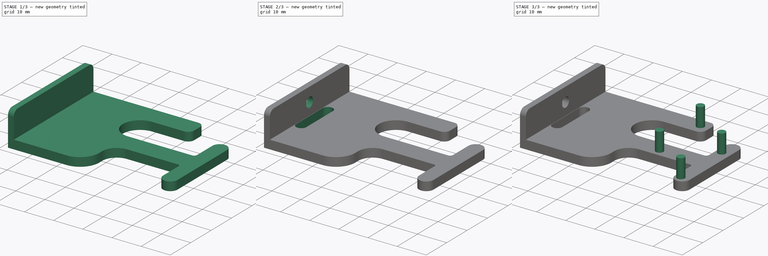
[diagram: build sequence overview — one tinted view per stage of 3, left to right]
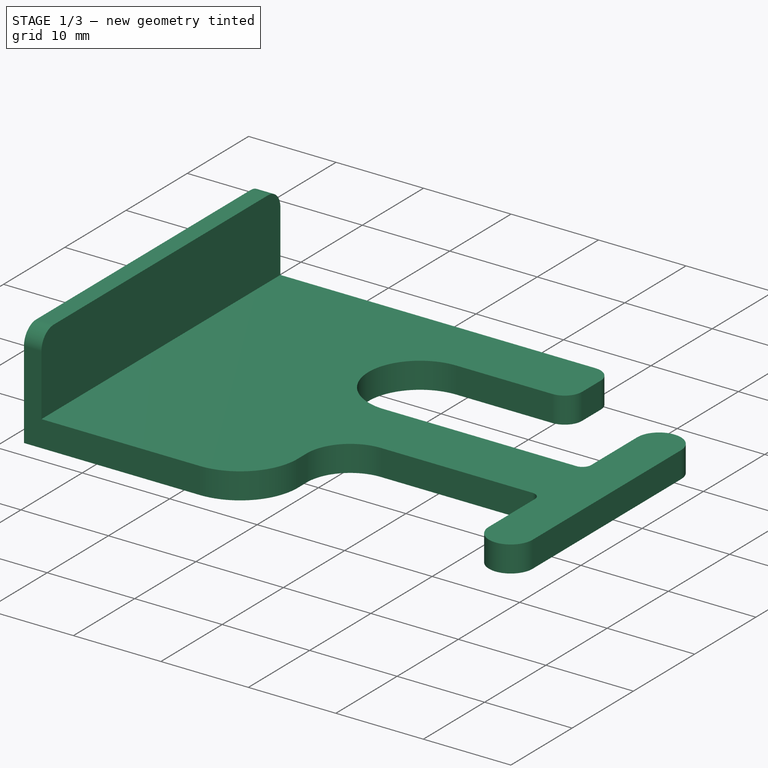
[diagram: stage 1 of 3 — iso view after this stage's code; geometry added in this stage tinted green]
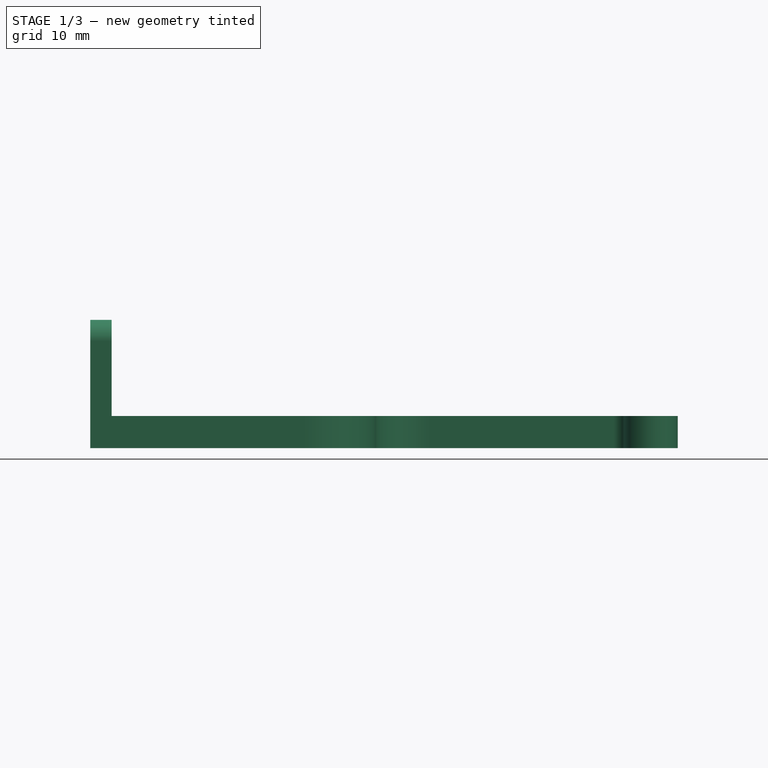
[diagram: stage 1 of 3 — front view after this stage's code; geometry added in this stage tinted green]
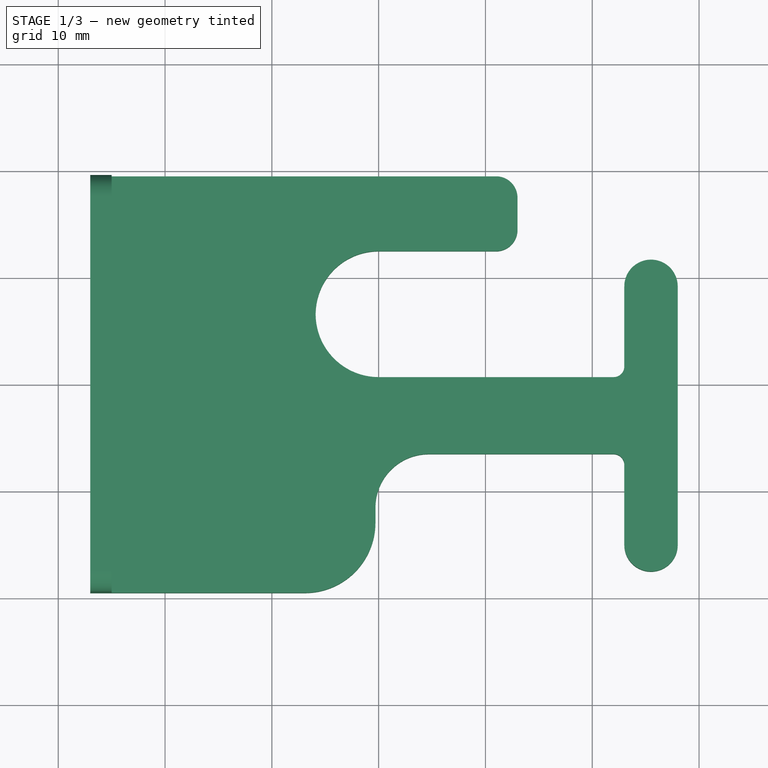
[diagram: stage 1 of 3 — top view after this stage's code; geometry added in this stage tinted green]
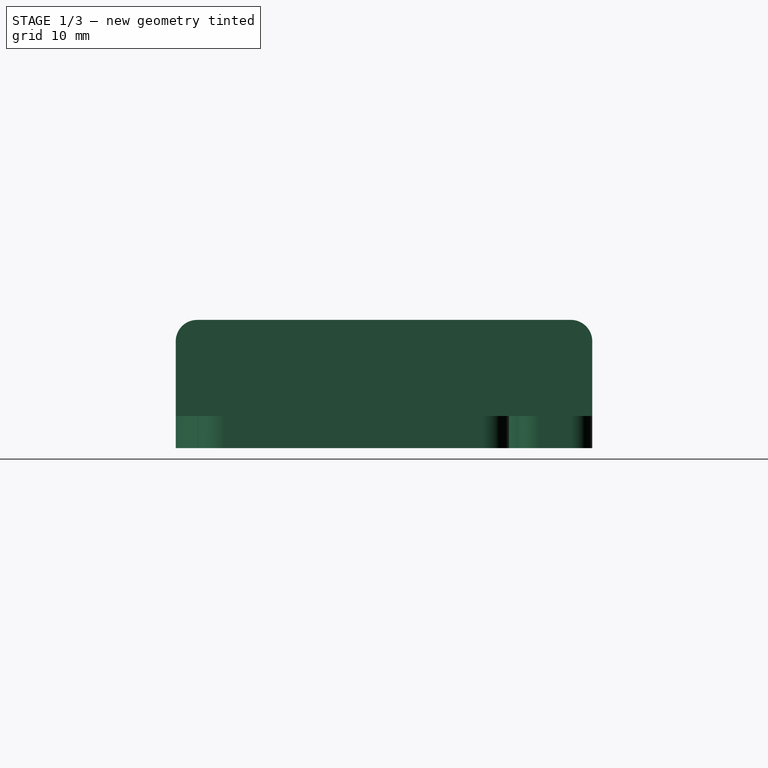
[diagram: stage 1 of 3 — right view after this stage's code; geometry added in this stage tinted green]
FCSTD DOCUMENT  (FreeCAD 0.15R4671 (Git))
Label: renacuajo-sniffer
License: CC-BY 3.0
LicenseURL: http://creativecommons.org/licenses/by/3.0/
objects: Sketcher::SketchObject×5, PartDesign::Pad×3, PartDesign::Pocket×2, Part::Feature×1, Part::MultiFuse×1
note: 17 computed .brp shape members not serialized (recipe doc carries the construction recipe); baked Part::Feature solids carry a one-line shape summary decoded from their .brp

FEATURE [Sketcher::SketchObject] Sketch  label="sniffer-base-sketch"
  sketch-geometry (20):
    g0: LineSegment StartX=-27 StartY=-19.5085 StartZ=0 EndX=-27 EndY=19.4915 EndZ=0
    g1: LineSegment StartX=-27 StartY=19.4915 StartZ=0 EndX=11 EndY=19.4915 EndZ=0
    g2: LineSegment StartX=13 StartY=17.4915 StartZ=0 EndX=13 EndY=14.4915 EndZ=0
    g3: LineSegment StartX=11 StartY=12.4915 StartZ=0 EndX=0 EndY=12.4915 EndZ=0
    g4: LineSegment StartX=-27 StartY=-19.5085 StartZ=0 EndX=-6.9 EndY=-19.5085 EndZ=0
    g5: LineSegment StartX=-0.3 StartY=-12.9085 StartZ=0 EndX=-0.3 EndY=-11.5085 EndZ=0
    g6: LineSegment StartX=4.7 StartY=-6.50851 StartZ=0 EndX=22 EndY=-6.50851 EndZ=0
    g7: LineSegment StartX=23 StartY=-7.50851 StartZ=0 EndX=23 EndY=-15.0085 EndZ=0
    g8: LineSegment StartX=28 StartY=-15.0085 StartZ=0 EndX=28 EndY=9.1915 EndZ=0
    g9: LineSegment StartX=23 StartY=9.19149 StartZ=0 EndX=23 EndY=1.69149 EndZ=0
    g10: LineSegment StartX=22 StartY=0.691495 StartZ=0 EndX=-1.14725e-06 EndY=0.691495 EndZ=0
    g11: ArcOfCircle CenterX=-1.80439e-07 CenterY=6.5915 CenterZ=0 NormalX=0 NormalY=0 NormalZ=1 Radius=5.9 StartAngle=1.5708 EndAngle=4.71239
    g12: ArcOfCircle CenterX=11 CenterY=17.4915 CenterZ=0 NormalX=0 NormalY=0 NormalZ=1 Radius=2 StartAngle=0 EndAngle=1.5708
    g13: ArcOfCircle CenterX=11 CenterY=14.4915 CenterZ=0 NormalX=0 NormalY=0 NormalZ=1 Radius=2 StartAngle=4.71239 EndAngle=6.28319
    g14: ArcOfCircle CenterX=-6.9 CenterY=-12.9085 CenterZ=0 NormalX=0 NormalY=0 NormalZ=1 Radius=6.6 StartAngle=4.71239 EndAngle=6.28319
    g15: ArcOfCircle CenterX=4.7 CenterY=-11.5085 CenterZ=0 NormalX=0 NormalY=0 NormalZ=1 Radius=5 StartAngle=1.5708 EndAngle=3.14159
    g16: ArcOfCircle CenterX=22 CenterY=-7.50851 CenterZ=0 NormalX=0 NormalY=0 NormalZ=1 Radius=1 StartAngle=0 EndAngle=1.5708
    g17: ArcOfCircle CenterX=25.5 CenterY=-15.0085 CenterZ=0 NormalX=0 NormalY=0 NormalZ=1 Radius=2.5 StartAngle=3.14159 EndAngle=6.28319
    g18: ArcOfCircle CenterX=22 CenterY=1.69149 CenterZ=0 NormalX=0 NormalY=0 NormalZ=1 Radius=1 StartAngle=4.71239 EndAngle=6.28319
    g19: ArcOfCircle CenterX=25.5 CenterY=9.1915 CenterZ=0 NormalX=0 NormalY=0 NormalZ=1 Radius=2.5 StartAngle=6.28319 EndAngle=9.42478
  constraints (57):
    c: Vertical(g0)
    c: Coincident(g0,g1)
    c: Horizontal(g1)
    c: Vertical(g2)
    c: Horizontal(g3)
    c: Horizontal(g4)
    c: Horizontal(g6)
    c: Vertical(g7)
    c: Vertical(g8)
    c: Vertical(g9)
    c: Horizontal(g10)
    c: Coincident(g4,g0)
    c: Vertical(g5)
    c: PointOnObject(g11,g-2)
    c: Coincident(g11,g3)
    c: Coincident(g11,g10)
    c: Tangent(g11,g3)
    c: Tangent(g10,g11)
    c: Tangent(g1,g12)
    c: Tangent(g2,g12)
    c: Tangent(g2,g13)
    c: Tangent(g3,g13)
    c: Radius(g12) = 2
    c: Equal(g13,g12)
    c: DistanceY(g1,g3) = -7
    c: DistanceX(g0,g2) = 40
    c: DistanceY(g0) = 39
    c: DistanceY(g3,g10) = -11.8
    c: DistanceX(g0) = -27
    c: DistanceY(g0) = 19.4915
    c: Tangent(g4,g14)
    c: Tangent(g5,g14)
    c: Tangent(g5,g15)
    c: Tangent(g6,g15)
    c: DistanceX(g0,g5) = 26.7
    c: Radius(g14) = 6.6
    c: Radius(g15) = 5
    c: DistanceY(g5) = 1.4
    c: Tangent(g6,g16)
    c: Tangent(g7,g16)
    c: DistanceX(g7,g5) = -23.3
    c: Radius(g16) = 1
    c: Coincident(g17,g7)
    c: Coincident(g17,g8)
    c: Tangent(g7,g17)
    c: Tangent(g17,g8)
    c: DistanceY(g7) = -7.5
    c: Tangent(g9,g18)
    c: Tangent(g10,g18)
    c: Equal(g16,g18)
    c: Equal(g7,g9)
    c: Coincident(g19,g8)
    c: Coincident(g19,g9)
    c: Tangent(g19,g8)
    c: Tangent(g19,g9)
    c: Equal(g19,g17)
    c: DistanceX(g7,g8) = 5
FEATURE [PartDesign::Pad] Pad  label="sniffer-base"
  Length = 3
  Length2 = 100
  Sketch = -> Sketch
  Type = 0
FEATURE [Sketcher::SketchObject] Sketch001  label="vertical-wall-sketch"
  ExternalGeometry = -> [Pad]
  Placement = pos=(-27,0,0) rot=(0.57735,-0.57735,-0.57735;2.0944rad)
  Support = -> Pad [Face2]
  sketch-geometry (6):
    g0: LineSegment StartX=-17.4915 StartY=12 StartZ=0 EndX=17.5085 EndY=12 EndZ=0
    g1: LineSegment StartX=19.5085 StartY=10 StartZ=0 EndX=19.5085 EndY=0 EndZ=0
    g2: LineSegment StartX=19.5085 StartY=0 StartZ=0 EndX=-19.4915 EndY=0 EndZ=0
    g3: LineSegment StartX=-19.4915 StartY=0 StartZ=0 EndX=-19.4915 EndY=10 EndZ=0
    g4: ArcOfCircle CenterX=-17.4915 CenterY=10 CenterZ=0 NormalX=0 NormalY=0 NormalZ=1 Radius=2 StartAngle=1.5708 EndAngle=3.14159
    g5: ArcOfCircle CenterX=17.5085 CenterY=10 CenterZ=0 NormalX=0 NormalY=0 NormalZ=1 Radius=2 StartAngle=0 EndAngle=1.5708
  constraints (15):
    c: Coincident(g1,g2)
    c: Coincident(g2,g3)
    c: Horizontal(g0)
    c: Horizontal(g2)
    c: Vertical(g1)
    c: Vertical(g3)
    c: Coincident(g2,g-3)
    c: Coincident(g1,g-3)
    c: Tangent(g0,g4)
    c: Tangent(g3,g4)
    c: Tangent(g0,g5)
    c: Tangent(g1,g5)
    c: DistanceY(g2,g0) = 12
    c: Radius(g4) = 2
    c: Equal(g5,g4)
FEATURE [PartDesign::Pad] Pad001  label="vertical-wall"
  Length = 2
  Length2 = 100
  Reversed = true
  Sketch = -> Sketch001
  Type = 0
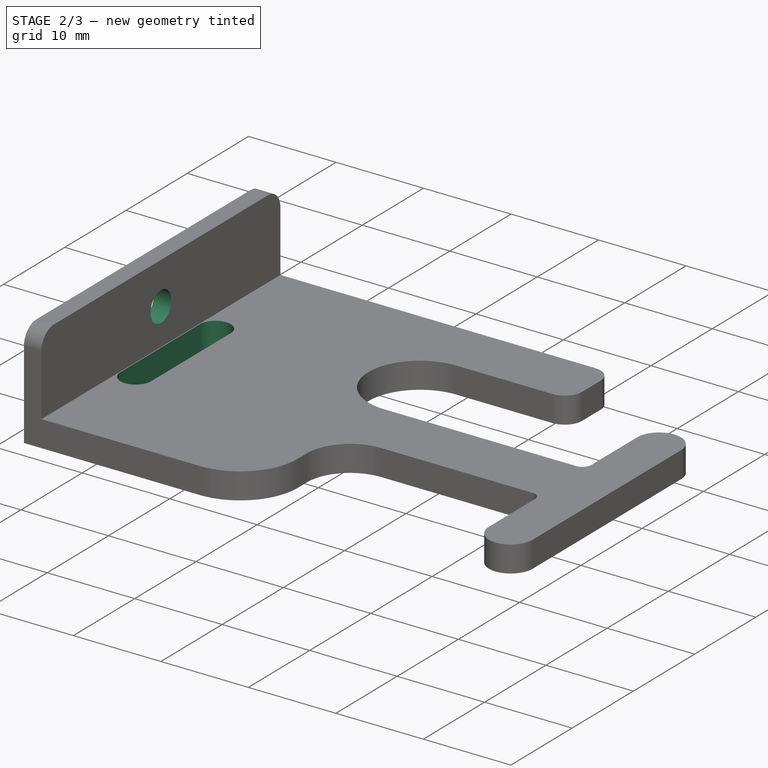
[diagram: stage 2 of 3 — iso view after this stage's code; geometry added in this stage tinted green]
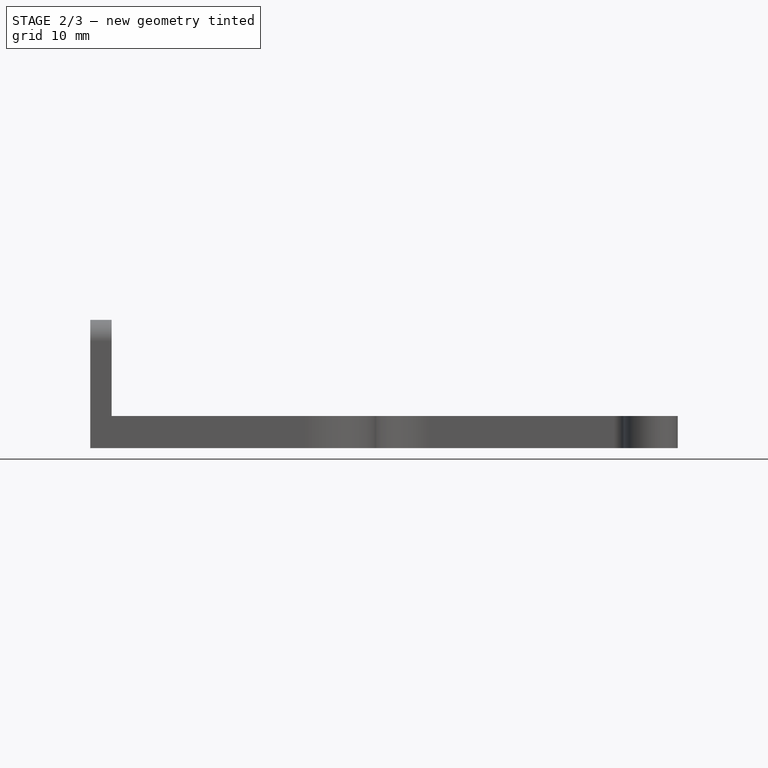
[diagram: stage 2 of 3 — front view after this stage's code; geometry added in this stage tinted green]
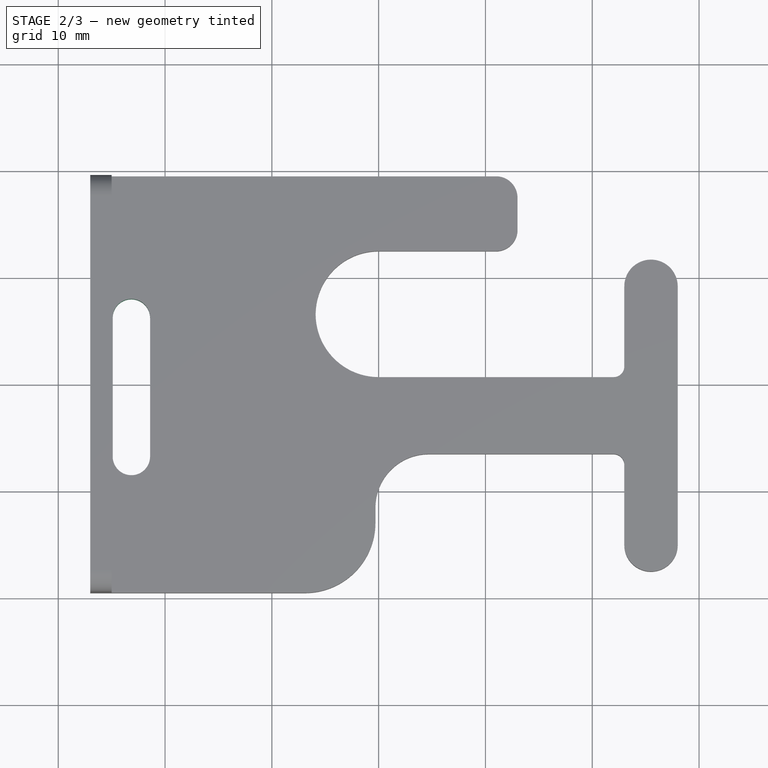
[diagram: stage 2 of 3 — top view after this stage's code; geometry added in this stage tinted green]
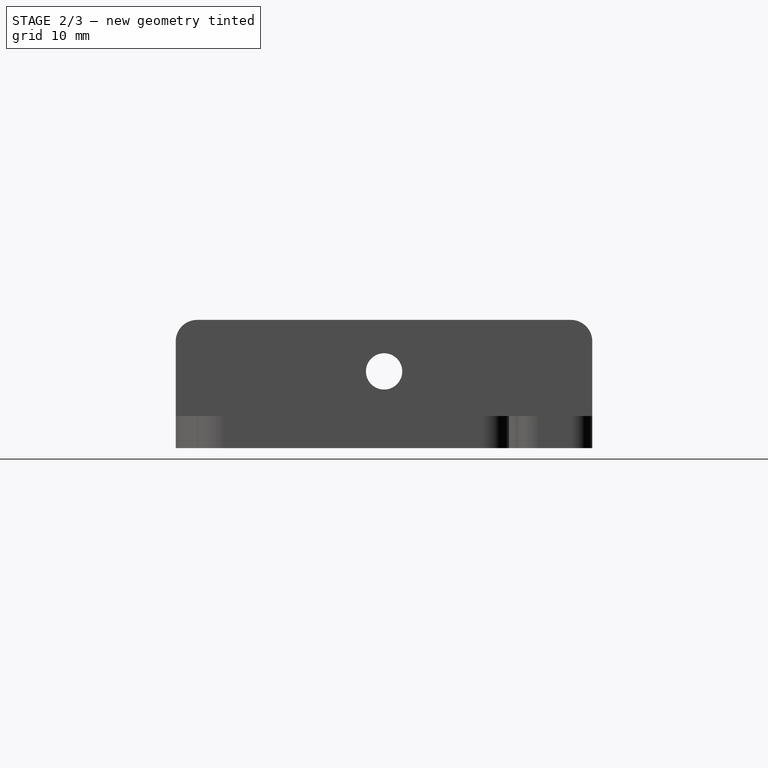
[diagram: stage 2 of 3 — right view after this stage's code; geometry added in this stage tinted green]
FEATURE [Part::Feature] Pocket001001  label="renacuajo-sniffer"
  shape: bbox 54 x 39 x 12 mm, 38 faces (baked)
FEATURE [Sketcher::SketchObject] Sketch004  label="boceto_slot"
  Placement = pos=(0,0,3) rot=(0,0,1;0rad)
  Support = -> Pad001 [Face5]
  sketch-geometry (4):
    g0: ArcOfCircle CenterX=-23.1528 CenterY=6.25645 CenterZ=0 NormalX=0 NormalY=0 NormalZ=1 Radius=1.75 StartAngle=6.28319 EndAngle=9.42478
    g1: ArcOfCircle CenterX=-23.1528 CenterY=-6.74355 CenterZ=0 NormalX=0 NormalY=0 NormalZ=1 Radius=1.75 StartAngle=3.14159 EndAngle=6.28319
    g2: LineSegment StartX=-24.9028 StartY=6.25645 StartZ=0 EndX=-24.9028 EndY=-6.74355 EndZ=0
    g3: LineSegment StartX=-21.4028 StartY=6.25645 StartZ=0 EndX=-21.4028 EndY=-6.74355 EndZ=0
  constraints (12):
    c: Tangent(g0,g2)
    c: Tangent(g0,g3)
    c: Tangent(g1,g2)
    c: Tangent(g1,g3)
    c: Coincident(g0,g3)
    c: Coincident(g0,g2)
    c: Coincident(g2,g1)
    c: Coincident(g3,g1)
    c: Vertical(g2)
    c: Equal(g0,g1)
    c: Distance(g3) = 13
    c: Distance(g0,g0) = 3.5
FEATURE [PartDesign::Pocket] Pocket  label="slot"
  Length = 5
  Sketch = -> Sketch004
  Type = 1
FEATURE [Sketcher::SketchObject] Sketch005  label="drill-sketch"
  Placement = pos=(-27,0,0) rot=(0.57735,-0.57735,-0.57735;2.0944rad)
  Support = -> Pocket [Face36]
  sketch-geometry (1):
    g0: Circle CenterX=0 CenterY=7.17934 CenterZ=0 NormalX=0 NormalY=0 NormalZ=1 Radius=1.7
  constraints (2):
    c: Radius(g0) = 1.7
    c: PointOnObject(g0,g-2)
FEATURE [PartDesign::Pocket] Pocket001002  label="drill"
  Length = 5
  Sketch = -> Sketch005
  Type = 0
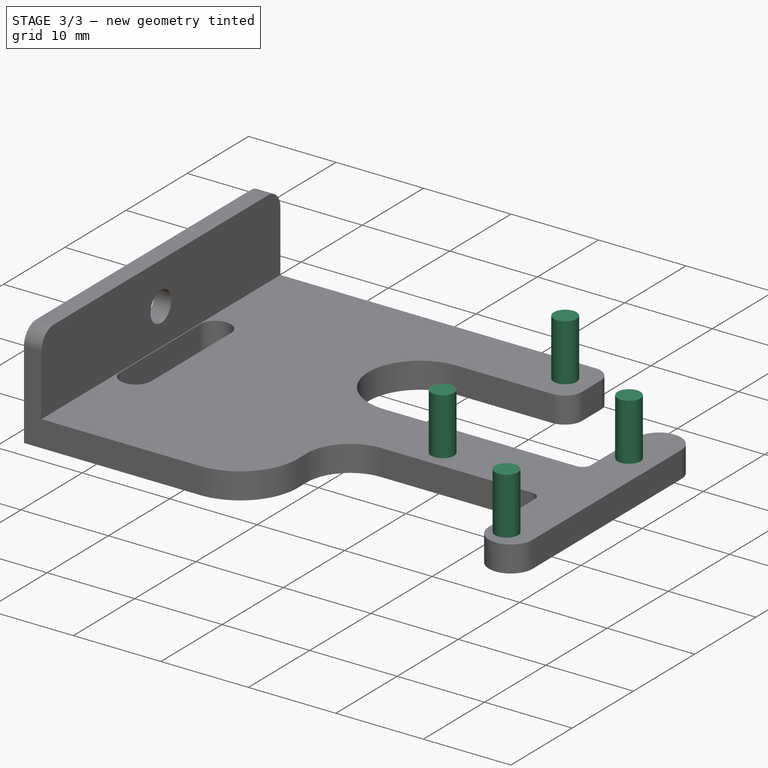
[diagram: stage 3 of 3 — iso view after this stage's code; geometry added in this stage tinted green]
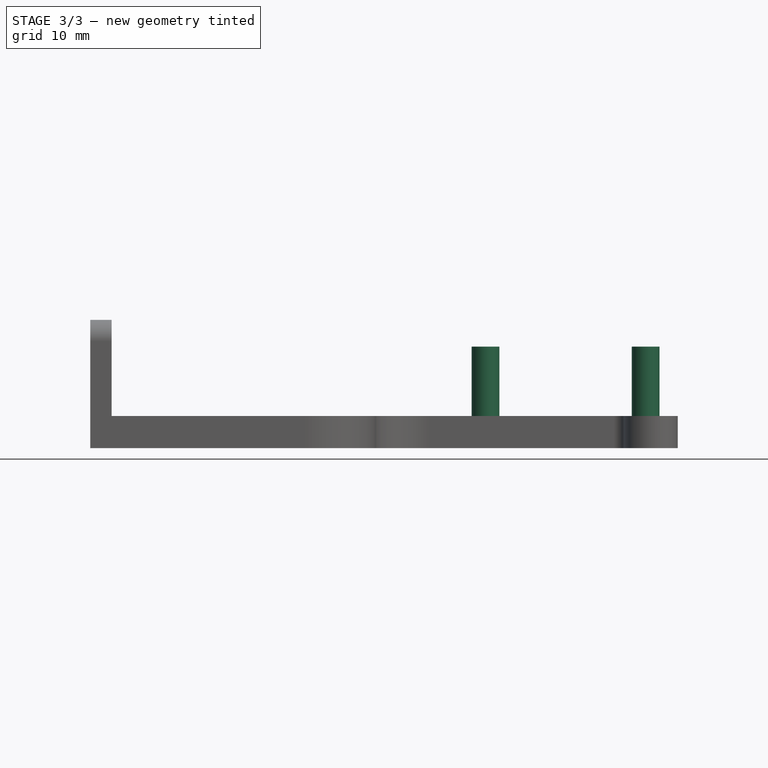
[diagram: stage 3 of 3 — front view after this stage's code; geometry added in this stage tinted green]
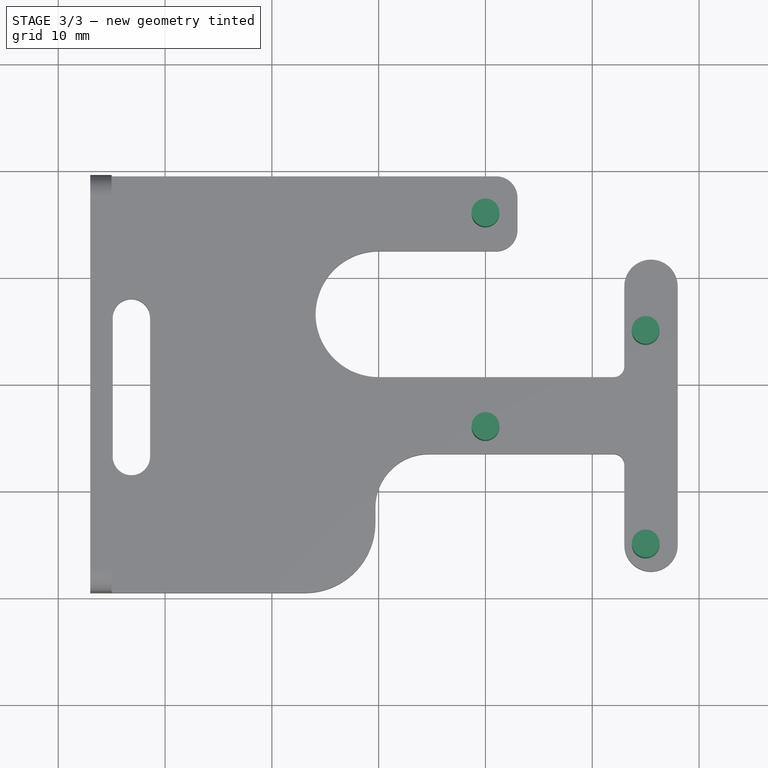
[diagram: stage 3 of 3 — top view after this stage's code; geometry added in this stage tinted green]
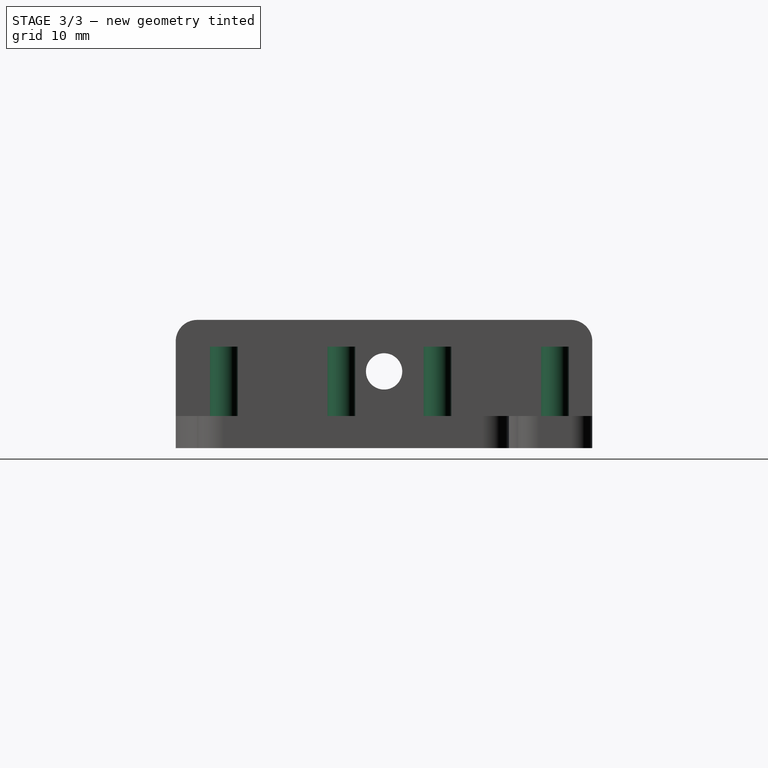
[diagram: stage 3 of 3 — right view after this stage's code; geometry added in this stage tinted green]
FEATURE [Sketcher::SketchObject] Sketch003  label="poles-sketch"
  Placement = pos=(0,0,3) rot=(0,0,1;0rad)
  sketch-geometry (9):
    g0: Circle CenterX=10 CenterY=16 CenterZ=0 NormalX=0 NormalY=0 NormalZ=1 Radius=1.3
    g1: Circle CenterX=25 CenterY=5 CenterZ=0 NormalX=0 NormalY=0 NormalZ=1 Radius=1.3
    g2: Circle CenterX=10 CenterY=-4 CenterZ=0 NormalX=0 NormalY=0 NormalZ=1 Radius=1.3
    g3: Circle CenterX=25 CenterY=-15 CenterZ=0 NormalX=0 NormalY=0 NormalZ=1 Radius=1.3
    g4: LineSegment [constr] StartX=10 StartY=16 StartZ=0 EndX=10 EndY=-4 EndZ=0
    g5: LineSegment [constr] StartX=10 StartY=16 StartZ=0 EndX=25 EndY=16 EndZ=0
    g6: LineSegment [constr] StartX=25 StartY=16 StartZ=0 EndX=25 EndY=5 EndZ=0
    g7: LineSegment [constr] StartX=10 StartY=-4 StartZ=0 EndX=25 EndY=-4 EndZ=0
    g8: LineSegment [constr] StartX=25 StartY=-4 StartZ=0 EndX=25 EndY=-15 EndZ=0
  constraints (24):
    c: Radius(g0) = 1.3
    c: Equal(g0,g1)
    c: Equal(g1,g2)
    c: Equal(g2,g3)
    c: DistanceX(g0,g1) = 15
    c: DistanceY(g0,g1) = -11
    c: Vertical(g4)
    c: Coincident(g4,g0)
    c: Coincident(g4,g2)
    c: DistanceX(g0) = 10
    c: DistanceY(g0) = 16
    c: Horizontal(g5)
    c: Vertical(g6)
    c: Coincident(g6,g5)
    c: Coincident(g5,g0)
    c: Coincident(g6,g1)
    c: Horizontal(g7)
    c: Vertical(g8)
    c: Coincident(g7,g8)
    c: Coincident(g7,g2)
    c: DistanceY(g4) = -20
    c: Equal(g7,g5)
    c: Equal(g8,g6)
    c: Coincident(g3,g8)
FEATURE [PartDesign::Pad] Pad002  label="poles"
  Length = 6.5
  Length2 = 100
  Placement = pos=(0,0,3) rot=(0,0,1;0rad)
  Sketch = -> Sketch003
  Type = 0
FEATURE [Part::MultiFuse] Fusion  label="sniffer-V2"
  Shapes = -> [Pad002,Pocket001002]
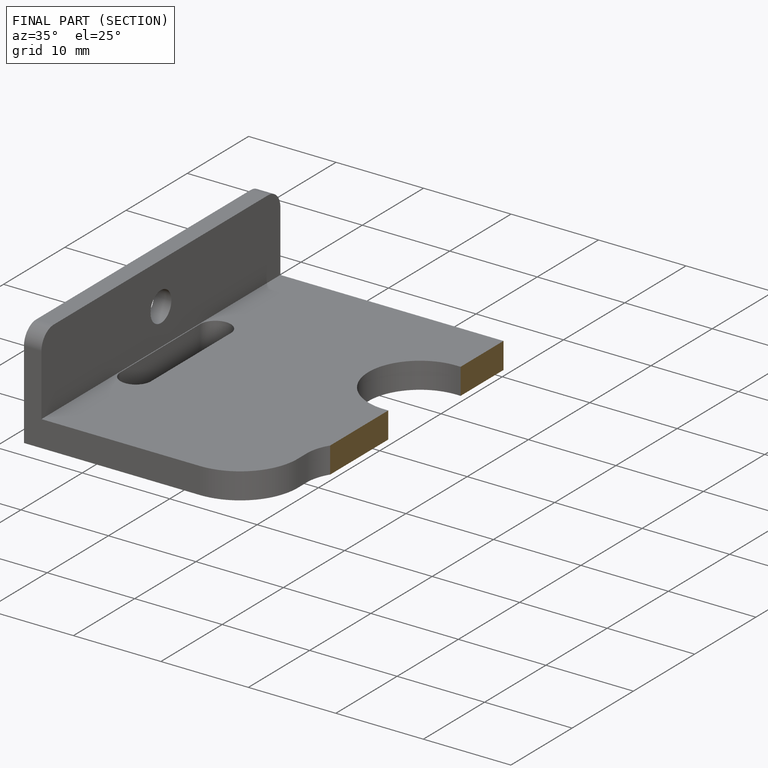
[diagram: finished part — half-section view (interior)]
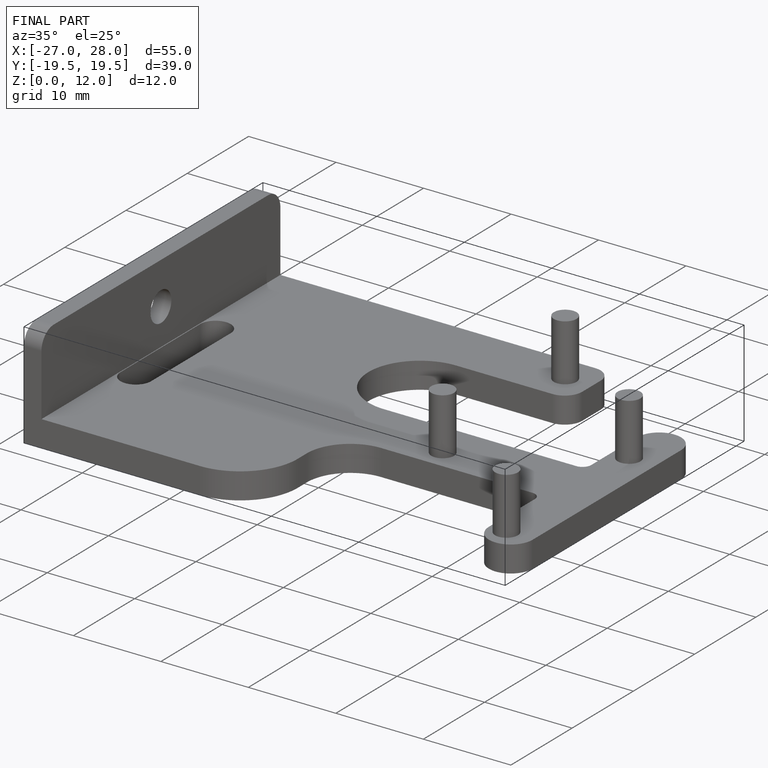
[diagram: finished part — iso view with bounding-box wireframe]
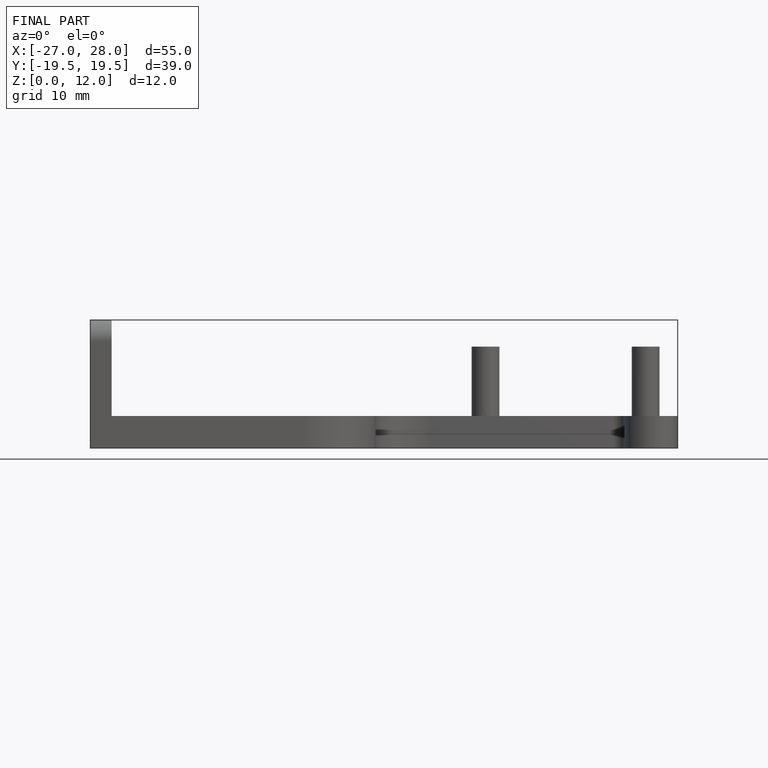
[diagram: finished part — front view with bounding-box wireframe]
